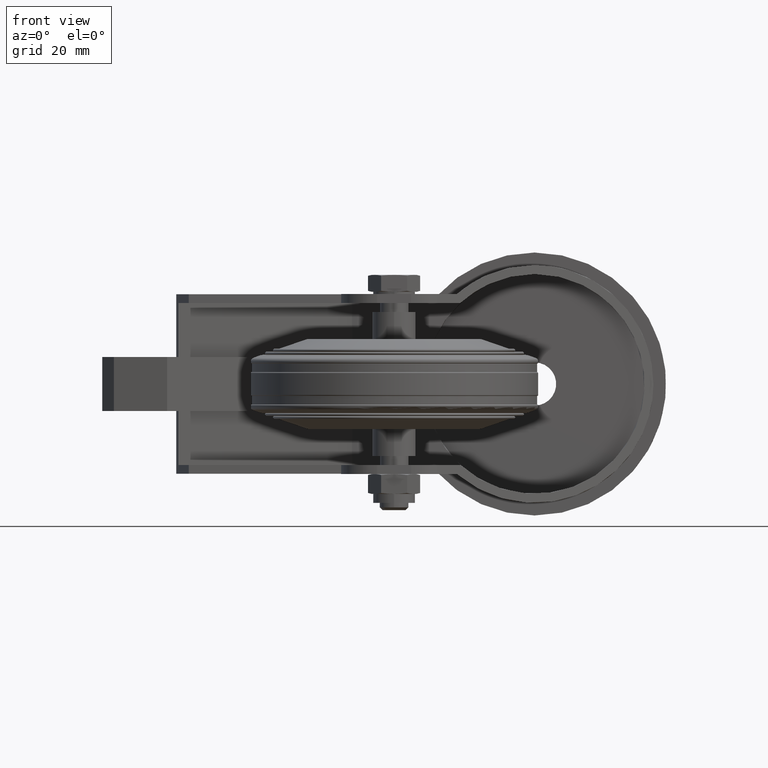
[diagram: clean part render]
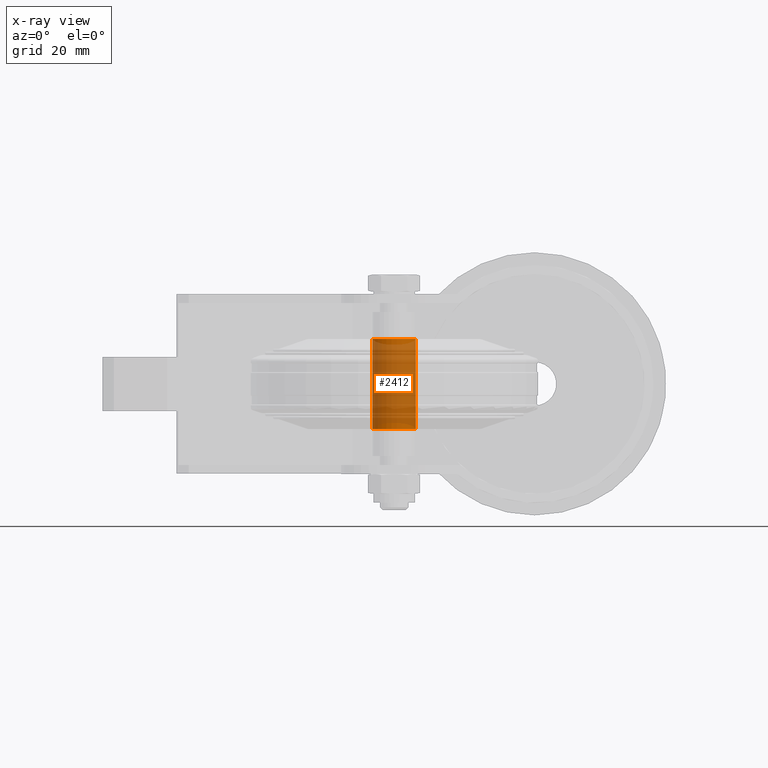
[diagram: x-ray — body ghosted, one internal face saturated and labeled with its STEP entity id]
A machine part, front view, then the same camera in x-ray: the body is ghosted and one INTERNAL B-rep face — a face not visible from any outside direction — is saturated and labeled: STEP entity #2412.
In plain terms, the highlighted cylindrical surface (bore or boss wall) has radius 6 mm, axis along (0, 0, -1).
Its self-contained STEP definition (entity closure, byte-faithful):
#431=FACE_OUTER_BOUND('',#610,.T.);
#610=EDGE_LOOP('',(#2233,#2234,#2235,#2236));
#737=CIRCLE('',#2802,6.);
#744=CIRCLE('',#2814,6.);
#893=LINE('',#4344,#1037);
#1037=VECTOR('',#3550,6.);
#1238=VERTEX_POINT('',#4322);
#1243=VERTEX_POINT('',#4341);
#1564=EDGE_CURVE('',#1238,#1238,#737,.T.);
#1573=EDGE_CURVE('',#1243,#1243,#744,.T.);
#1574=EDGE_CURVE('',#1243,#1238,#893,.T.);
#2233=ORIENTED_EDGE('',*,*,#1573,.F.);
#2234=ORIENTED_EDGE('',*,*,#1574,.T.);
#2235=ORIENTED_EDGE('',*,*,#1564,.T.);
#2236=ORIENTED_EDGE('',*,*,#1574,.F.);
#2261=CYLINDRICAL_SURFACE('',#2815,6.);
#2412=ADVANCED_FACE('',(#431),#2261,.F.);
#2802=AXIS2_PLACEMENT_3D('',#4323,#3520,#3521);
#2814=AXIS2_PLACEMENT_3D('',#4342,#3546,#3547);
#2815=AXIS2_PLACEMENT_3D('',#4343,#3548,#3549);
#3520=DIRECTION('center_axis',(6.12323399573677E-17,0.,-1.));
#3521=DIRECTION('ref_axis',(-1.,0.,-6.12323399573677E-17));
#3546=DIRECTION('center_axis',(6.12323399573677E-17,0.,-1.));
#3547=DIRECTION('ref_axis',(-1.,0.,-6.12323399573677E-17));
#3548=DIRECTION('center_axis',(6.12323399573677E-17,0.,-1.));
#3549=DIRECTION('ref_axis',(-1.,0.,-6.12323399573677E-17));
#3550=DIRECTION('',(6.12323399573677E-17,0.,-1.));
#4322=CARTESIAN_POINT('',(6.,-7.34788079488412E-16,-12.5));
#4323=CARTESIAN_POINT('Origin',(7.65404249467096E-16,0.,-12.5));
#4341=CARTESIAN_POINT('',(6.,-7.34788079488412E-16,12.5));
#4342=CARTESIAN_POINT('Origin',(-7.65404249467096E-16,0.,12.5));
#4343=CARTESIAN_POINT('Origin',(7.65404249467096E-16,0.,-12.5));
#4344=CARTESIAN_POINT('',(6.,-7.34788079488412E-16,-12.5));